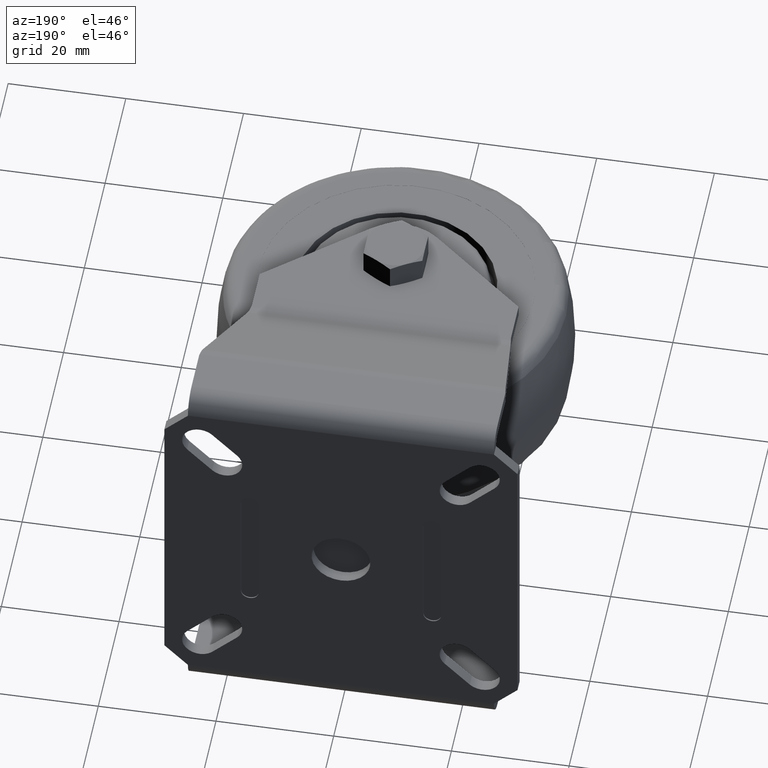
[diagram: clean part render]
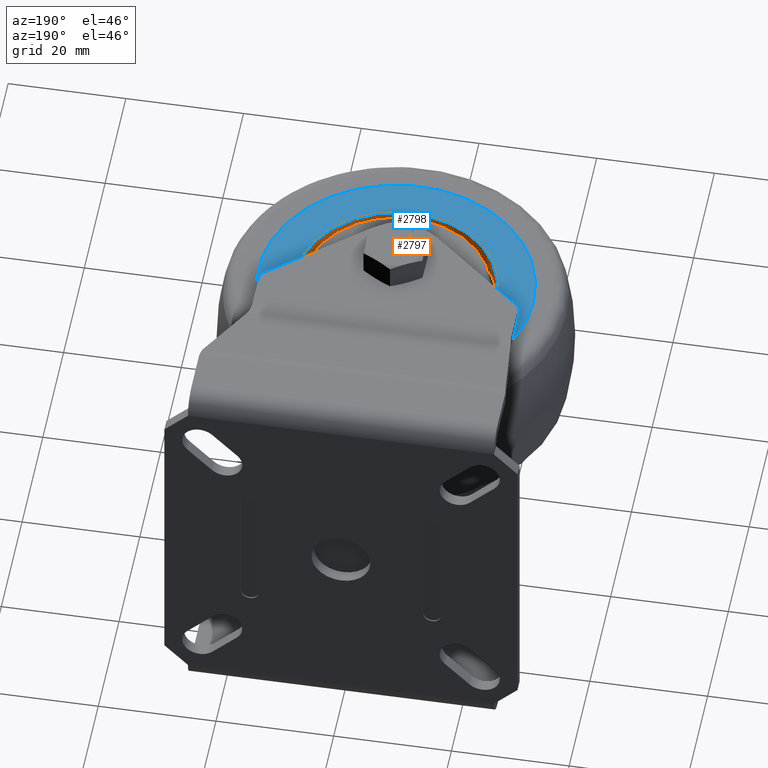
[diagram: same view with the hole feature highlighted: cylindrical wall and planar end face, labeled with their STEP entity ids]
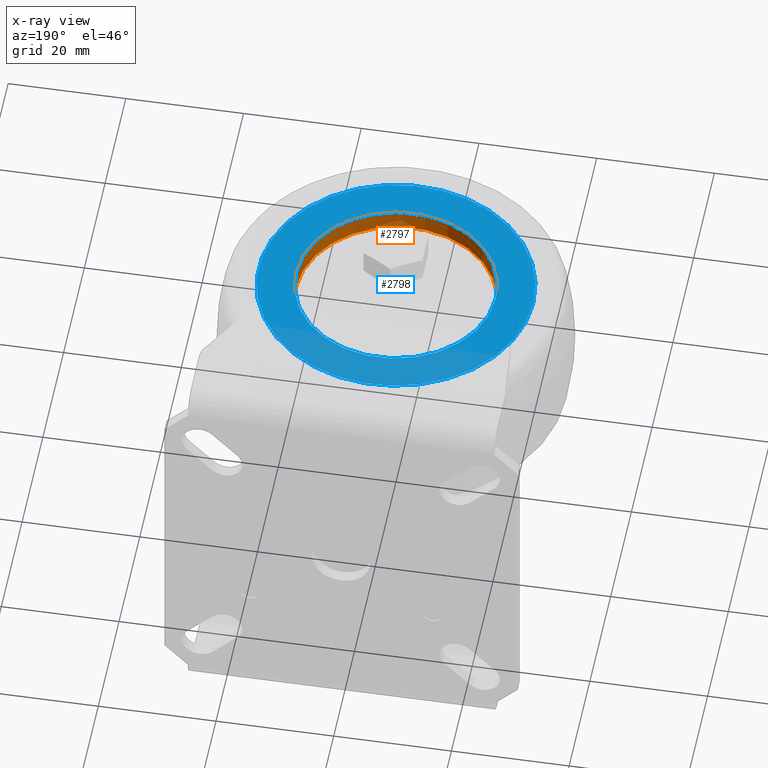
[diagram: x-ray of the same camera — body ghosted, the hole faces saturated]
A machine part, auxiliary view. The highlighted faces form one hole feature of diameter 34.0032 mm: the cylindrical wall (entity #2797, orange) and its adjacent planar end face (entity #2798, blue) — they share a circular edge in the B-rep.
The next image is the same camera in x-ray (body ghosted, the hole faces saturated) — the bore reads through the body.
Wall:
#144=LINE('',#4640,#330);
#330=VECTOR('',#3717,17.0016);
#506=CYLINDRICAL_SURFACE('',#3225,17.0016);
#716=FACE_OUTER_BOUND('',#905,.T.);
#905=EDGE_LOOP('',(#2104,#2105,#2106,#2107));
#1110=CIRCLE('',#3224,17.0016);
#1111=CIRCLE('',#3226,17.0016);
#1314=VERTEX_POINT('',#4635);
#1315=VERTEX_POINT('',#4639);
#1605=EDGE_CURVE('',#1314,#1314,#1110,.T.);
#1606=EDGE_CURVE('',#1314,#1315,#144,.T.);
#1607=EDGE_CURVE('',#1315,#1315,#1111,.T.);
#2104=ORIENTED_EDGE('',*,*,#1605,.F.);
#2105=ORIENTED_EDGE('',*,*,#1606,.T.);
#2106=ORIENTED_EDGE('',*,*,#1607,.T.);
#2107=ORIENTED_EDGE('',*,*,#1606,.F.);
#2797=ADVANCED_FACE('',(#716),#506,.F.);
#3224=AXIS2_PLACEMENT_3D('',#4637,#3713,#3714);
#3225=AXIS2_PLACEMENT_3D('',#4638,#3715,#3716);
#3226=AXIS2_PLACEMENT_3D('',#4641,#3718,#3719);
#3713=DIRECTION('center_axis',(1.,0.,0.));
#3714=DIRECTION('ref_axis',(0.,0.,-1.));
#3715=DIRECTION('center_axis',(1.,0.,0.));
#3716=DIRECTION('ref_axis',(0.,0.,-1.));
#3717=DIRECTION('',(1.,0.,0.));
#3718=DIRECTION('center_axis',(1.,0.,0.));
#3719=DIRECTION('ref_axis',(0.,0.,-1.));
#4635=CARTESIAN_POINT('',(22.4704618061407,-2.08209550203836E-15,17.0016));
#4637=CARTESIAN_POINT('Origin',(22.4704618061407,0.,0.));
#4638=CARTESIAN_POINT('Origin',(28.,0.,0.));
#4639=CARTESIAN_POINT('',(26.,-2.08209550203836E-15,17.0016));
#4640=CARTESIAN_POINT('',(28.,-2.08209550203836E-15,17.0016));
#4641=CARTESIAN_POINT('Origin',(26.,0.,0.));
End face:
#553=FACE_BOUND('',#907,.T.);
#597=PLANE('',#3227);
#717=FACE_OUTER_BOUND('',#906,.T.);
#906=EDGE_LOOP('',(#2108));
#907=EDGE_LOOP('',(#2109));
#1111=CIRCLE('',#3226,17.0016);
#1112=CIRCLE('',#3228,23.3515);
#1315=VERTEX_POINT('',#4639);
#1316=VERTEX_POINT('',#4643);
#1607=EDGE_CURVE('',#1315,#1315,#1111,.T.);
#1608=EDGE_CURVE('',#1316,#1316,#1112,.T.);
#2108=ORIENTED_EDGE('',*,*,#1608,.T.);
#2109=ORIENTED_EDGE('',*,*,#1607,.F.);
#2798=ADVANCED_FACE('',(#717,#553),#597,.T.);
#3226=AXIS2_PLACEMENT_3D('',#4641,#3718,#3719);
#3227=AXIS2_PLACEMENT_3D('',#4642,#3720,#3721);
#3228=AXIS2_PLACEMENT_3D('',#4644,#3722,#3723);
#3718=DIRECTION('center_axis',(1.,0.,0.));
#3719=DIRECTION('ref_axis',(0.,0.,-1.));
#3720=DIRECTION('center_axis',(1.,0.,0.));
#3721=DIRECTION('ref_axis',(0.,0.,-1.));
#3722=DIRECTION('center_axis',(1.,0.,0.));
#3723=DIRECTION('ref_axis',(0.,0.,-1.));
#4639=CARTESIAN_POINT('',(26.,-2.08209550203836E-15,17.0016));
#4641=CARTESIAN_POINT('Origin',(26.,0.,0.));
#4642=CARTESIAN_POINT('Origin',(26.,17.0016,0.));
#4643=CARTESIAN_POINT('',(26.,-2.85973397302894E-15,23.3515));
#4644=CARTESIAN_POINT('Origin',(26.,0.,0.));